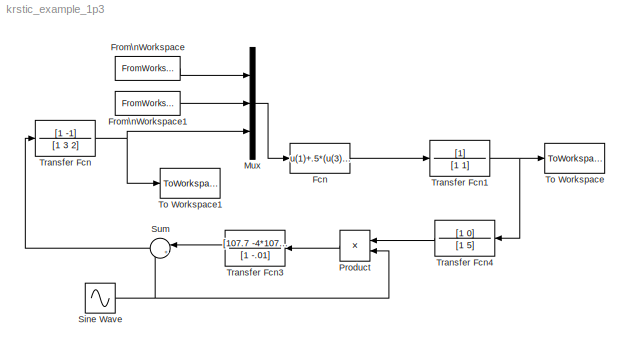
MODEL krstic_example_1p3
KIND model
BLOCK [Fcn] Fcn
  Expr = u(1)+.5*(u(3)-u(2))^2
  SID = 1
BLOCK [FromWorkspace] From\nWorkspace
  SID = 2
  VariableName = fstar
BLOCK [FromWorkspace] From\nWorkspace1
  SID = 3
  VariableName = thetastar
BLOCK [Mux] Mux
  DisplayOption = bar
  Inputs = 3
  Ports = [3, 1]
  SID = 4
BLOCK [Product] Product
  Ports = [2, 1]
  RndMeth = Zero
  SID = 5
BLOCK [Sin] Sine Wave
  Amplitude = .05
  Frequency = 5
  Ports = [0, 1]
  SID = 6
  SampleTime = 0
BLOCK [Sum] Sum
  Inputs = |++
  Ports = [2, 1]
  SID = 8
BLOCK [ToWorkspace] To Workspace
  MaxDataPoints = inf
  Ports = [1]
  SID = 9
  SampleTime = -1
  VariableName = y
BLOCK [ToWorkspace] To Workspace1
  MaxDataPoints = inf
  Ports = [1]
  SID = 10
  SampleTime = -1
  VariableName = theta
BLOCK [TransferFcn] Transfer Fcn
  Denominator = [1 3 2]
  Numerator = [1 -1]
  SID = 11
BLOCK [TransferFcn] Transfer Fcn1
  Denominator = [1 1]
  SID = 12
BLOCK [TransferFcn] Transfer Fcn3
  Denominator = [1 -.01]
  Numerator = [107.7 -4*107.7]
  SID = 13
BLOCK [TransferFcn] Transfer Fcn4
  Denominator = [1 5]
  Numerator = [1 0]
  SID = 14
LINE Fcn:1 -> Transfer Fcn1:1
LINE From\nWorkspace1:1 -> Mux:2
LINE From\nWorkspace:1 -> Mux:1
LINE Mux:1 -> Fcn:1
LINE Product:1 -> Transfer Fcn3:1
NET Sine Wave:1 -> Product:2, Sum:2
LINE Sum:1 -> Transfer Fcn:1
NET Transfer Fcn1:1 -> To Workspace:1, Transfer Fcn4:1
LINE Transfer Fcn3:1 -> Sum:1
LINE Transfer Fcn4:1 -> Product:1
NET Transfer Fcn:1 -> Mux:3, To Workspace1:1
note: NET lines group one-source signal fan-out (src -> all destinations, sorted); 1:1 wires keep LINE
